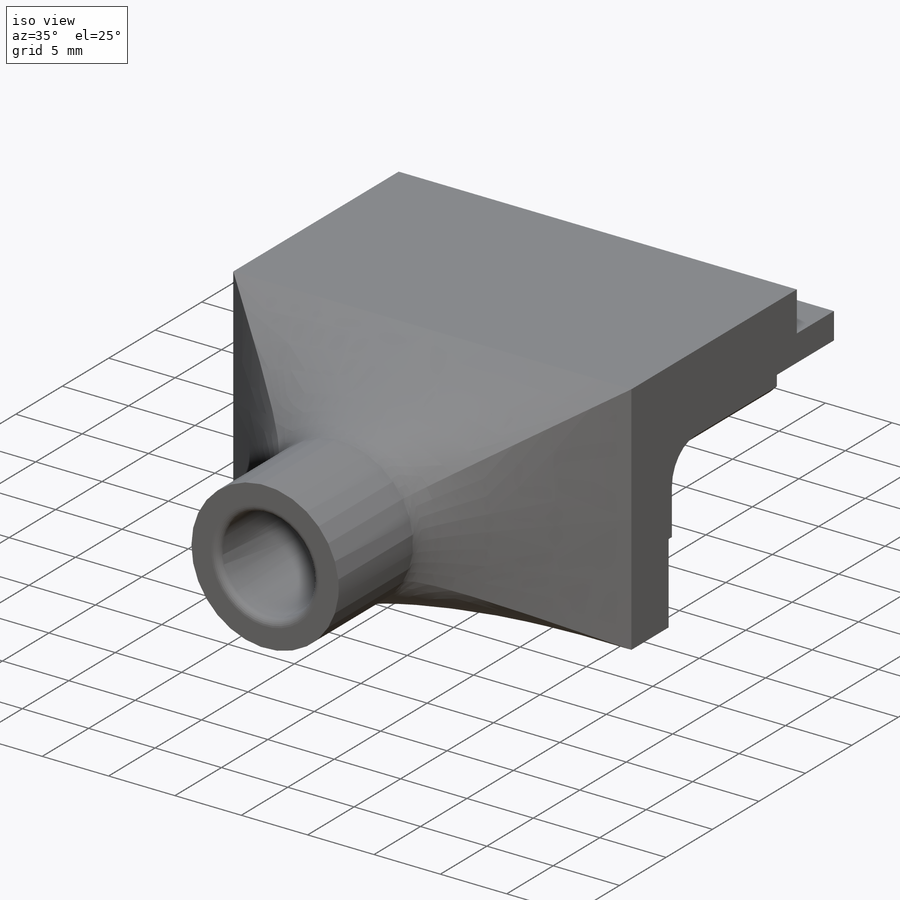
[diagram: iso view]
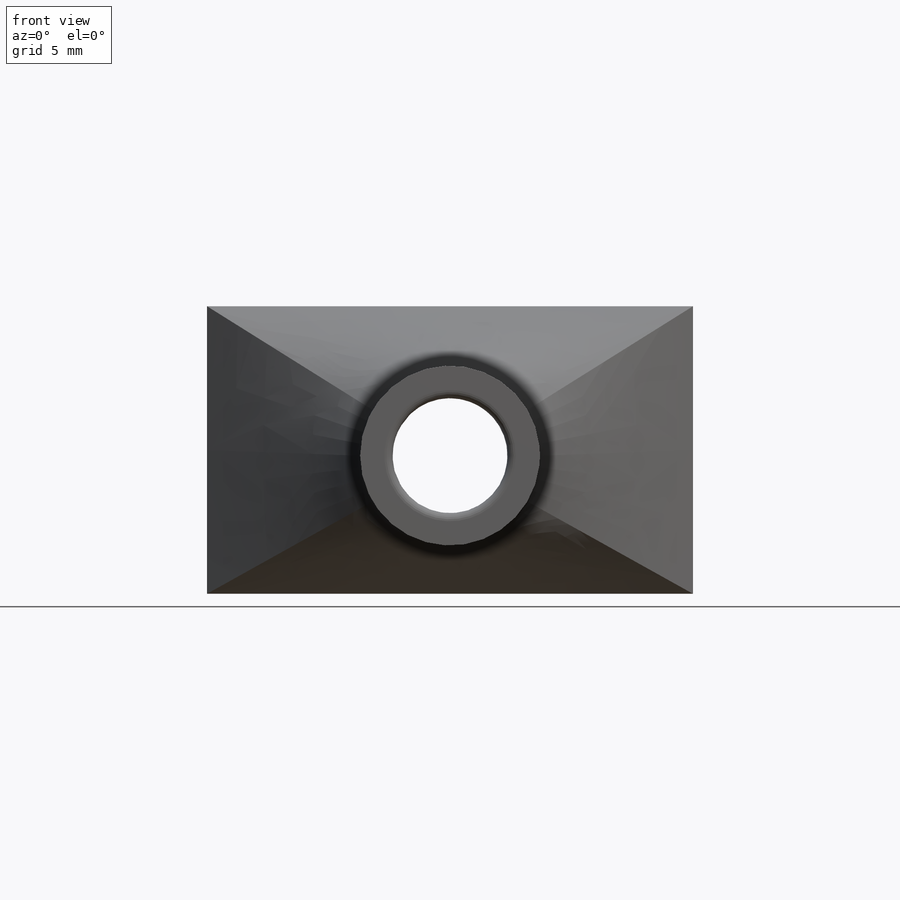
[diagram: front view]
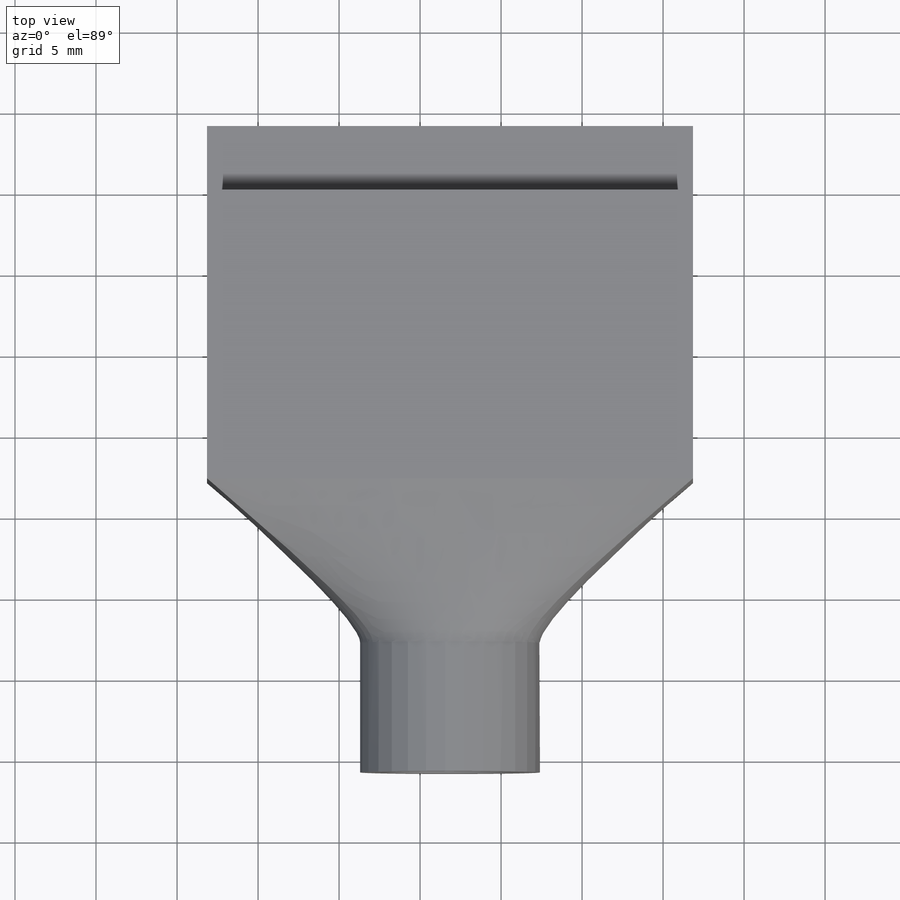
[diagram: top view]
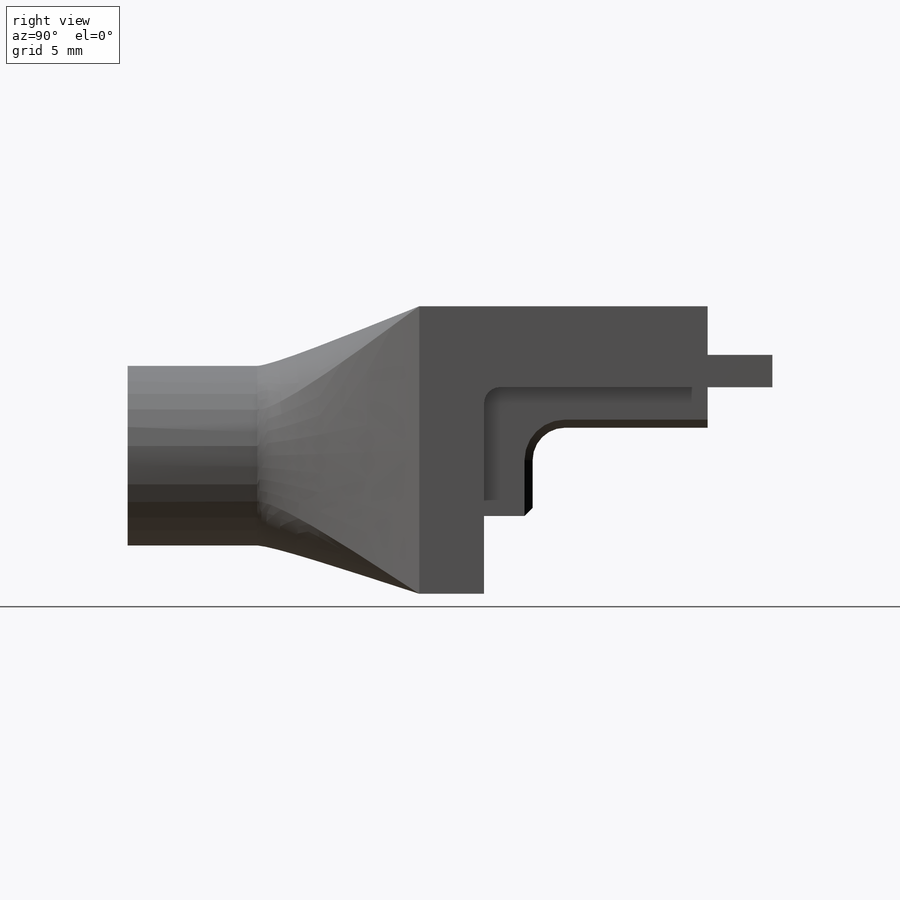
[diagram: right view]
SOLIDWORKS PART (.sldprt)
format: sldprt  version: not decoded by parser v0  size: 704,512 bytes
history: native  units: mm
features: sketch x15, extrude x7, cut_extrude x3, fillet x3, plane x2, material x1, chamfer x1 (+11 scaffold rows collapsed)
feature tree (43):
  scaffold x11  (default folders/planes/origin — collapsed)
  material  "ABS"
  sketch  "Sketch1"  dims[D1=5.0mm D2=1.0mm D3=2.5mm]
  extrude  "Boss-Extrude1"  [1 undecoded]
  sketch  "Sketch2"  dims[D1=2.0mm]
  extrude  "Boss-Extrude2"  Depth=4mm
  sketch  "Sketch3"  dims[D1=2.0mm]
  cut_extrude  "Cut-Extrude1"  [1 undecoded]
  sketch  "Sketch6"  dims[D2=2.0mm D1=3.0mm D3=0.5mm]
  extrude  "Boss-Extrude3"  [1 undecoded]
  sketch  "Sketch8"
  extrude  "Boss-Extrude4"  [1 undecoded]
  chamfer  "Chamfer1"  Distance=0.5mm Angle=45deg
  plane  "Plane1"
  sketch  "Sketch9"  dims[D1=1.5mm]
  extrude  "Boss-Extrude5"  Depth=4mm
  fillet  "Fillet1"  Radius=1mm
  plane  "Plane2"  Offset=10mm
  sketch  "Sketch11"  dims[D1=7.1mm D2=2.0mm]
  sketch  "Sketch12"
  sketch  "3DSketch2"
  sketch  "Sketch11<304>"
  sketch  "Sketch12<210>"
  extrude  "Boss-Extrude7"  [1 undecoded]
  sketch  "Sketch11<305>"  dims[D1=8.0mm]
  sketch  "Sketch15"  dims[D1=4.0mm D2=3.0mm D3=2.0mm D4=0.5mm]
  cut_extrude  "Cut-Extrude2"  [1 undecoded]
  fillet  "Fillet3"  Radius=0.5mm
  sketch  "Sketch17"  dims[D1=7.75mm]
  cut_extrude  "Cut-Extrude4"  [1 undecoded]
  fillet  "Fillet4"  Radius=0.5mm
  sketch  "Sketch19"  dims[D1=1.6mm D4=1.0mm D2=0.3mm D3=0.85mm D5=2.5mm D6=3.6mm]
  extrude  "Boss-Extrude8"  [1 undecoded]
decode coverage: 16 of 29 modeling features carry decoded parameters
note: 8 parameter values undecoded
summary: no parameter record found for 8 features
note: suppression state not decoded; provenance and decode notes live in map.json
